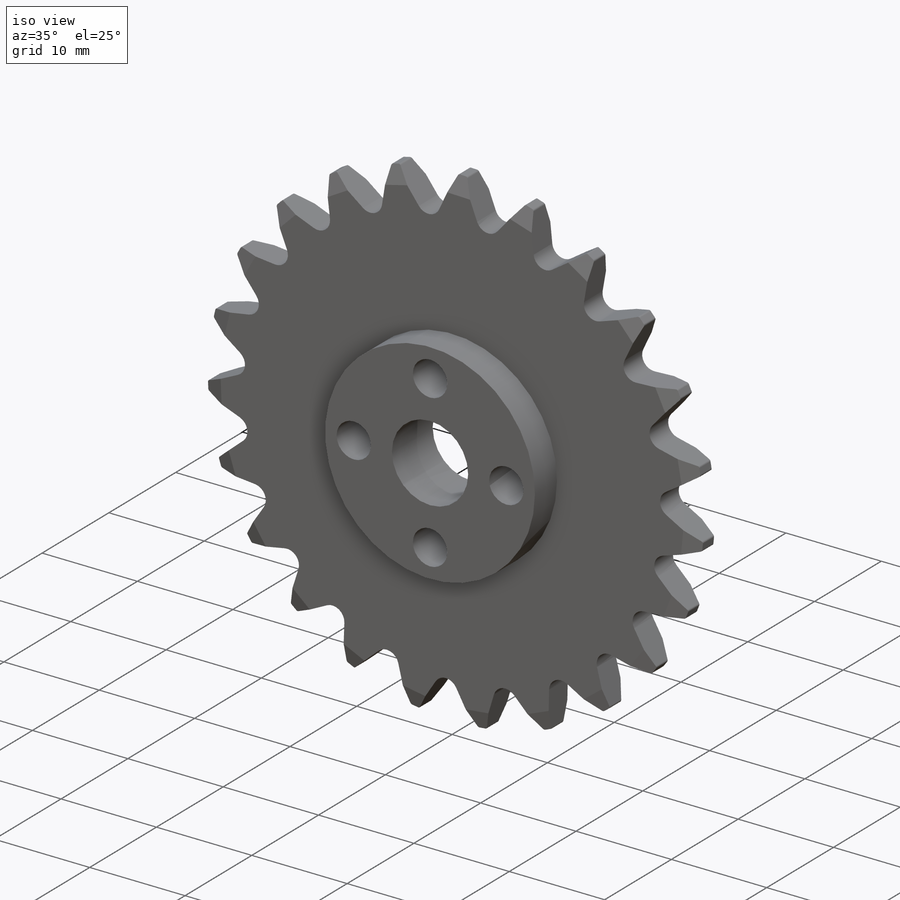
[diagram: iso view]
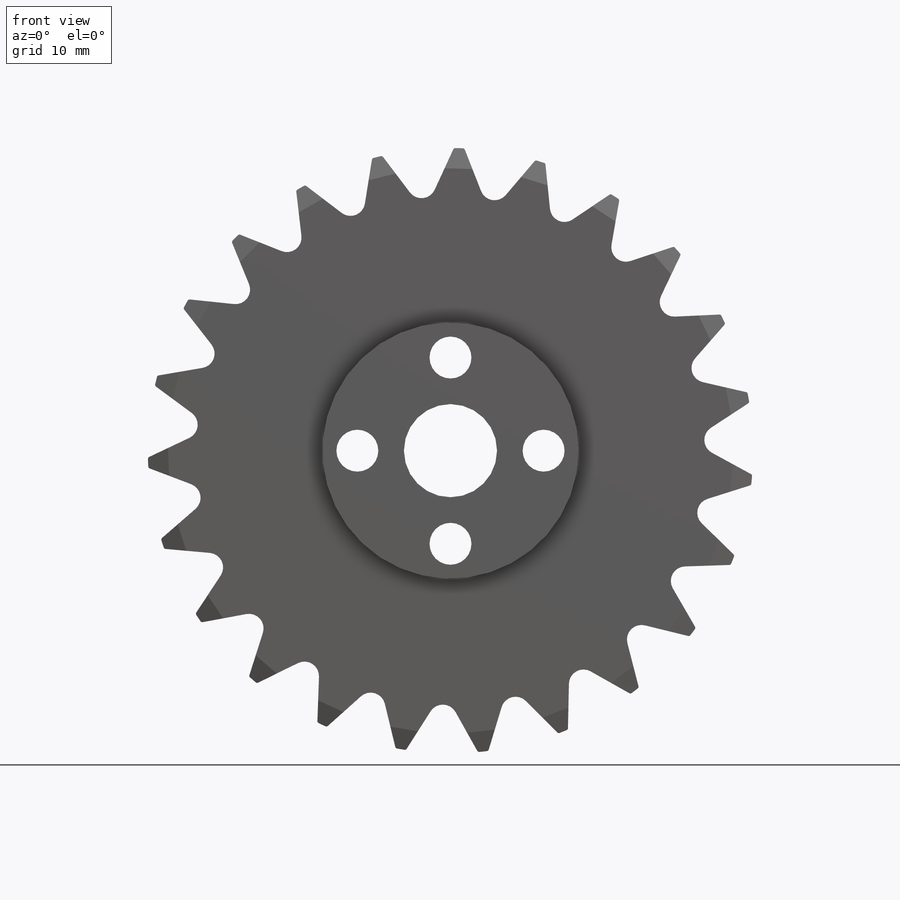
[diagram: front view]
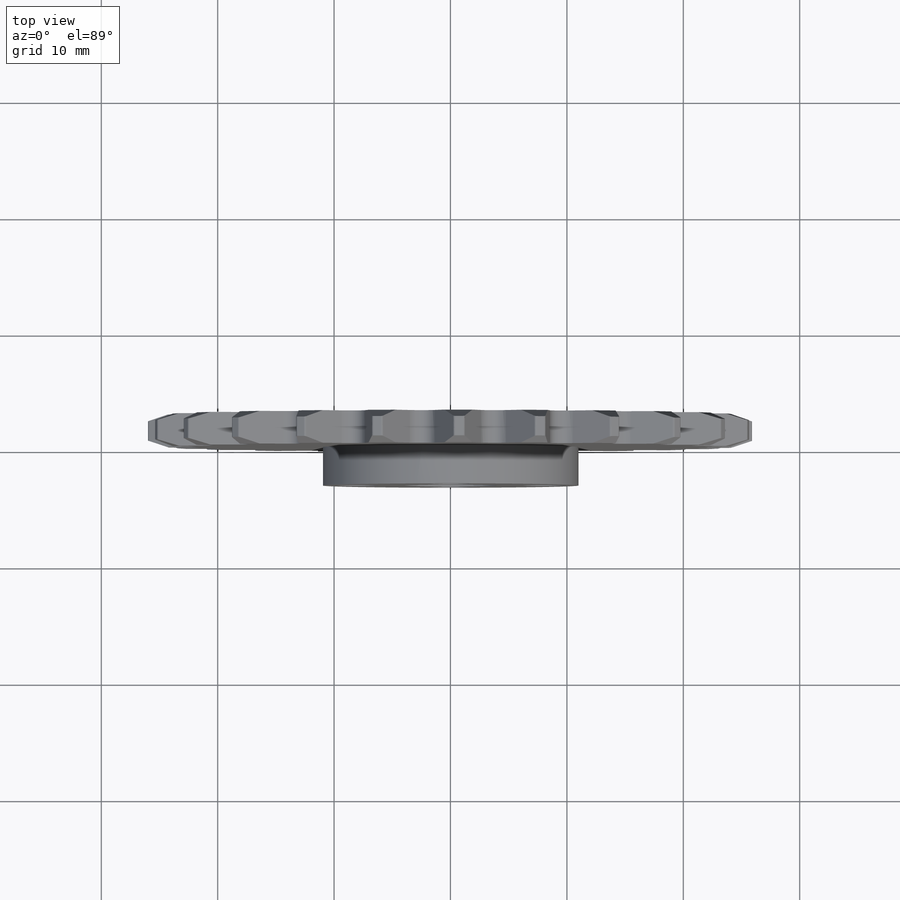
[diagram: top view]
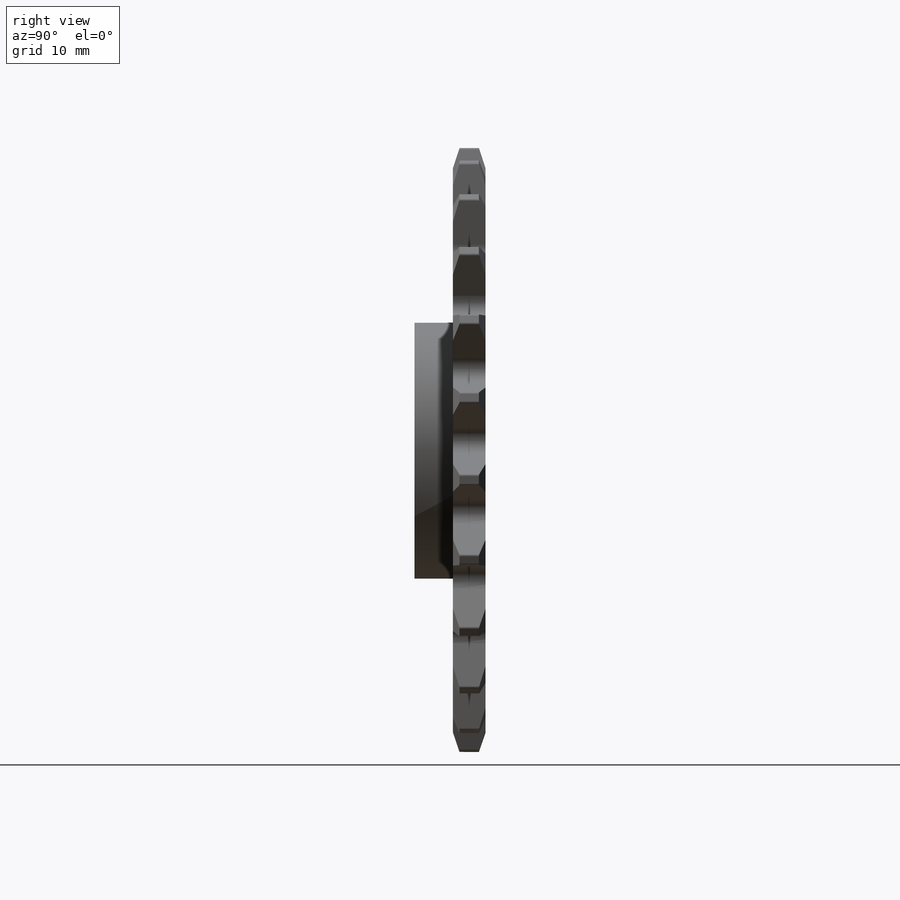
[diagram: right view]
SOLIDWORKS PART (.sldprt)
format: sldprt  version: not decoded by parser v0  size: 970,752 bytes
history: native  units: mm
features: sketch x32, cut_extrude x23, hole x3, revolve x2, material x1, fillet x1, cut_revolve x1 (+11 scaffold rows collapsed)
feature tree (74):
  scaffold x11  (default folders/planes/origin — collapsed)
  material  "2024 Alloy"
  sketch  "Sketch1"
  revolve  "Revolve1"  Angle=360deg
  sketch  "Sketch2"
  cut_extrude  "Cut-Extrude1"  Depth=2.799994mm
  sketch  "Sketch3"
  cut_extrude  "Cut-Extrude2"  Depth=2.799994mm
  sketch  "Sketch4"
  cut_extrude  "Cut-Extrude3"  Depth=2.799994mm
  sketch  "Sketch5"
  cut_extrude  "Cut-Extrude4"  Depth=2.799994mm
  sketch  "Sketch6"
  cut_extrude  "Cut-Extrude5"  Depth=2.799994mm
  sketch  "Sketch7"
  cut_extrude  "Cut-Extrude6"  Depth=2.799994mm
  sketch  "Sketch8"
  cut_extrude  "Cut-Extrude7"  Depth=2.799994mm
  sketch  "Sketch9"
  cut_extrude  "Cut-Extrude8"  Depth=2.799994mm
  sketch  "Sketch10"
  cut_extrude  "Cut-Extrude9"  Depth=2.799994mm
  sketch  "Sketch11"
  cut_extrude  "Cut-Extrude10"  Depth=2.799994mm
  sketch  "Sketch12"
  cut_extrude  "Cut-Extrude11"  Depth=2.799994mm
  sketch  "Sketch13"
  cut_extrude  "Cut-Extrude12"  Depth=2.799994mm
  sketch  "Sketch14"
  cut_extrude  "Cut-Extrude13"  Depth=2.799994mm
  sketch  "Sketch15"
  cut_extrude  "Cut-Extrude14"  Depth=2.799994mm
  sketch  "Sketch16"
  cut_extrude  "Cut-Extrude15"  Depth=2.799994mm
  sketch  "Sketch17"
  cut_extrude  "Cut-Extrude16"  Depth=2.799994mm
  sketch  "Sketch18"
  cut_extrude  "Cut-Extrude17"  Depth=2.799994mm
  sketch  "Sketch19"
  cut_extrude  "Cut-Extrude18"  Depth=2.799994mm
  sketch  "Sketch20"
  cut_extrude  "Cut-Extrude19"  Depth=2.799994mm
  sketch  "Sketch21"
  cut_extrude  "Cut-Extrude20"  Depth=2.799994mm
  sketch  "Sketch22"
  cut_extrude  "Cut-Extrude21"  Depth=2.799994mm
  sketch  "Sketch23"
  cut_extrude  "Cut-Extrude22"  Depth=2.799994mm
  sketch  "Sketch24"
  cut_extrude  "Cut-Extrude23"  Depth=2.799994mm
  sketch  "Sketch25"
  revolve  "Revolve2"  Angle=360deg
  hole  "Ø8.0 (8) Diameter Hole1"  Diameter=8mm Depth=6.101994mm
  sketch  "Sketch27"
  sketch  "Sketch26"  dims[hole-wizard template sketch: 60 standard entries collapsed; hole parameters kept: c18.Thru Hole Depth=~6.101994mm]
  hole  "Ø3.6 (3.6) Diameter Hole1"  Diameter=3.6mm Depth=6.101994mm
  sketch  "Sketch29"
  sketch  "Sketch28"  dims[hole-wizard template sketch: 59 standard entries collapsed; hole parameters kept: c18.Thru Hole Dia.=3.6mm c18.Thru Hole Depth=~6.101994mm]
  hole  "Ø3.6 (3.6) Diameter Hole2"  Diameter=3.6mm Depth=6.101994mm
  sketch  "Sketch31"
  sketch  "Sketch30"  dims[hole-wizard template sketch: 59 standard entries collapsed; hole parameters kept: c18.Thru Hole Dia.=3.6mm c18.Thru Hole Depth=~6.101994mm]
  fillet  "Fillet1"  Radius=0.2mm
  sketch  "Sketch32"  dims[D1=24.2697mm D2=1.778mm D3=0.5842mm]
  cut_revolve  "Cut-Revolve1"  Angle=360deg
decode coverage: 34 of 62 modeling features carry decoded parameters
note: ~ marks probable driven/reference dimensions
note: suppression state not decoded; provenance and decode notes live in map.json
